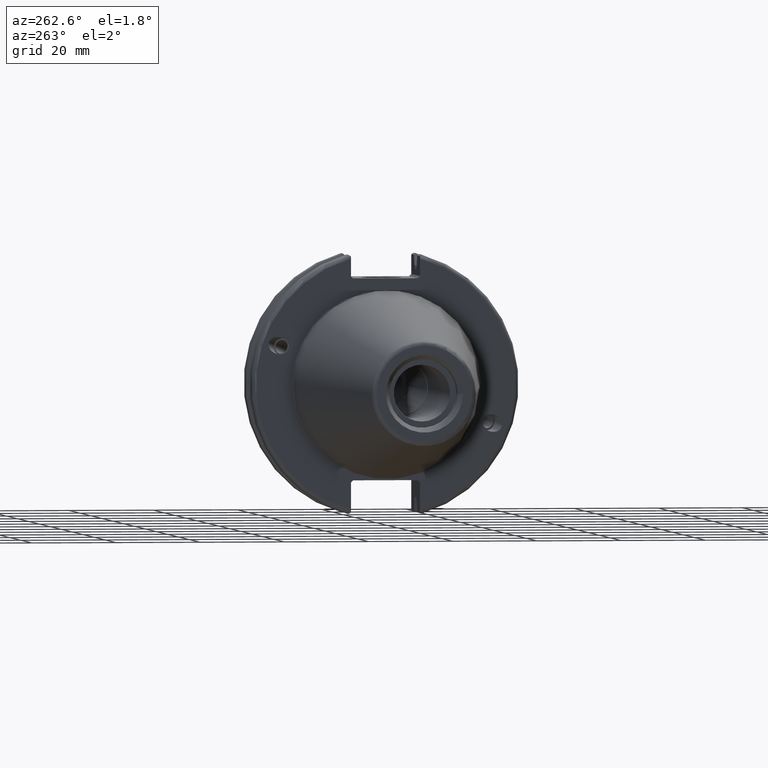
[diagram: clean part render]
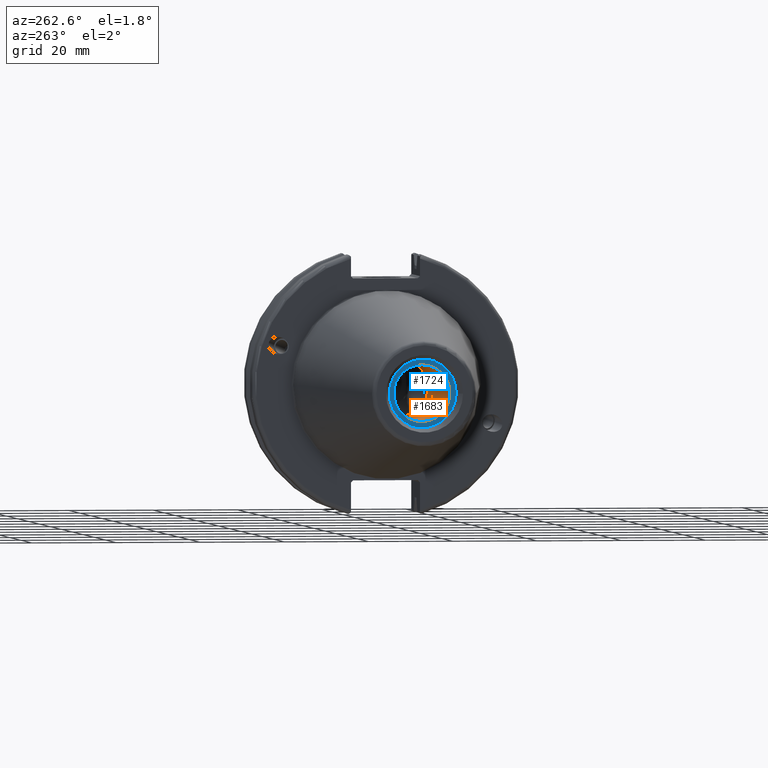
[diagram: same view with the hole feature highlighted: cylindrical wall and planar end face, labeled with their STEP entity ids]
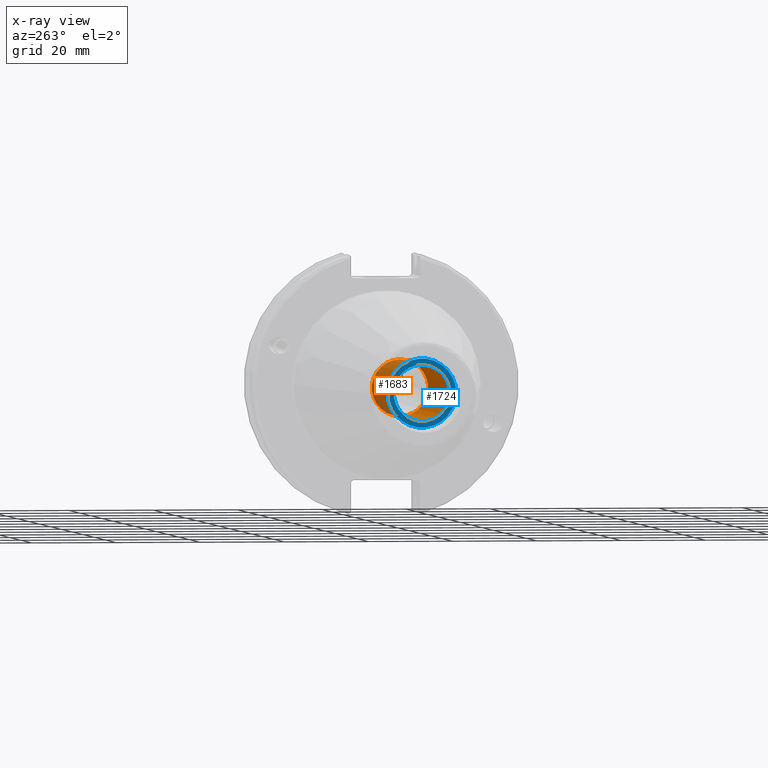
[diagram: x-ray of the same camera — body ghosted, the hole faces saturated]
A machine part, auxiliary view. The highlighted faces form one hole feature of diameter 13.3858 mm: the cylindrical wall (entity #1683, orange) and its adjacent planar end face (entity #1724, blue) — they share a circular edge in the B-rep.
The next image is the same camera in x-ray (body ghosted, the hole faces saturated) — the bore reads through the body.
Wall:
#98=CYLINDRICAL_SURFACE('',#1873,6.6929);
#207=LINE('',#2983,#301);
#301=VECTOR('',#2259,6.6929);
#402=FACE_OUTER_BOUND('',#499,.T.);
#499=EDGE_LOOP('',(#1364,#1365,#1366,#1367,#1368));
#615=CIRCLE('',#1871,6.6929);
#616=CIRCLE('',#1872,6.6929);
#617=CIRCLE('',#1874,6.6929);
#773=VERTEX_POINT('',#2975);
#774=VERTEX_POINT('',#2976);
#775=VERTEX_POINT('',#2981);
#991=EDGE_CURVE('',#773,#774,#615,.T.);
#993=EDGE_CURVE('',#774,#773,#616,.T.);
#994=EDGE_CURVE('',#775,#775,#617,.T.);
#995=EDGE_CURVE('',#775,#774,#207,.T.);
#1364=ORIENTED_EDGE('',*,*,#994,.F.);
#1365=ORIENTED_EDGE('',*,*,#995,.T.);
#1366=ORIENTED_EDGE('',*,*,#991,.F.);
#1367=ORIENTED_EDGE('',*,*,#993,.F.);
#1368=ORIENTED_EDGE('',*,*,#995,.F.);
#1683=ADVANCED_FACE('',(#402),#98,.F.);
#1871=AXIS2_PLACEMENT_3D('',#2977,#2250,#2251);
#1872=AXIS2_PLACEMENT_3D('',#2979,#2253,#2254);
#1873=AXIS2_PLACEMENT_3D('',#2980,#2255,#2256);
#1874=AXIS2_PLACEMENT_3D('',#2982,#2257,#2258);
#2250=DIRECTION('center_axis',(-1.,0.,0.));
#2251=DIRECTION('ref_axis',(0.,0.,1.));
#2253=DIRECTION('center_axis',(-1.,0.,0.));
#2254=DIRECTION('ref_axis',(0.,0.,1.));
#2255=DIRECTION('center_axis',(-1.,0.,0.));
#2256=DIRECTION('ref_axis',(0.,0.,1.));
#2257=DIRECTION('center_axis',(1.,0.,0.));
#2258=DIRECTION('ref_axis',(0.,0.,1.));
#2259=DIRECTION('',(1.,0.,0.));
#2975=CARTESIAN_POINT('',(-23.25,0.,6.6929));
#2976=CARTESIAN_POINT('',(-23.25,-8.19643856201332E-16,-6.6929));
#2977=CARTESIAN_POINT('Origin',(-23.25,0.,0.));
#2979=CARTESIAN_POINT('Origin',(-23.25,0.,0.));
#2980=CARTESIAN_POINT('Origin',(-45.75,0.,0.));
#2981=CARTESIAN_POINT('',(-63.45,8.19643856201332E-16,-6.6929));
#2982=CARTESIAN_POINT('Origin',(-63.45,0.,0.));
#2983=CARTESIAN_POINT('',(-45.75,-8.19643856201332E-16,-6.6929));
End face:
#123=FACE_BOUND('',#546,.T.);
#159=PLANE('',#1950);
#443=FACE_OUTER_BOUND('',#545,.T.);
#545=EDGE_LOOP('',(#1602,#1603));
#546=EDGE_LOOP('',(#1604));
#617=CIRCLE('',#1874,6.6929);
#653=CIRCLE('',#1951,8.14999999999999);
#654=CIRCLE('',#1952,8.14999999999999);
#775=VERTEX_POINT('',#2981);
#839=VERTEX_POINT('',#3303);
#840=VERTEX_POINT('',#3304);
#994=EDGE_CURVE('',#775,#775,#617,.T.);
#1099=EDGE_CURVE('',#839,#840,#653,.T.);
#1100=EDGE_CURVE('',#840,#839,#654,.T.);
#1602=ORIENTED_EDGE('',*,*,#1099,.F.);
#1603=ORIENTED_EDGE('',*,*,#1100,.F.);
#1604=ORIENTED_EDGE('',*,*,#994,.T.);
#1724=ADVANCED_FACE('',(#443,#123),#159,.T.);
#1874=AXIS2_PLACEMENT_3D('',#2982,#2257,#2258);
#1950=AXIS2_PLACEMENT_3D('',#3302,#2454,#2455);
#1951=AXIS2_PLACEMENT_3D('',#3305,#2456,#2457);
#1952=AXIS2_PLACEMENT_3D('',#3306,#2458,#2459);
#2257=DIRECTION('center_axis',(1.,0.,0.));
#2258=DIRECTION('ref_axis',(0.,0.,1.));
#2454=DIRECTION('center_axis',(-1.,0.,0.));
#2455=DIRECTION('ref_axis',(0.,0.,1.));
#2456=DIRECTION('center_axis',(1.,0.,0.));
#2457=DIRECTION('ref_axis',(0.,0.,-1.));
#2458=DIRECTION('center_axis',(1.,0.,0.));
#2459=DIRECTION('ref_axis',(0.,0.,-1.));
#2981=CARTESIAN_POINT('',(-63.45,8.19643856201332E-16,-6.6929));
#2982=CARTESIAN_POINT('Origin',(-63.45,0.,0.));
#3302=CARTESIAN_POINT('Origin',(-63.45,8.14999999999999,0.));
#3303=CARTESIAN_POINT('',(-63.45,8.14999999999999,0.));
#3304=CARTESIAN_POINT('',(-63.45,-8.14999999999999,-9.98087141305092E-16));
#3305=CARTESIAN_POINT('Origin',(-63.45,0.,0.));
#3306=CARTESIAN_POINT('Origin',(-63.45,0.,0.));